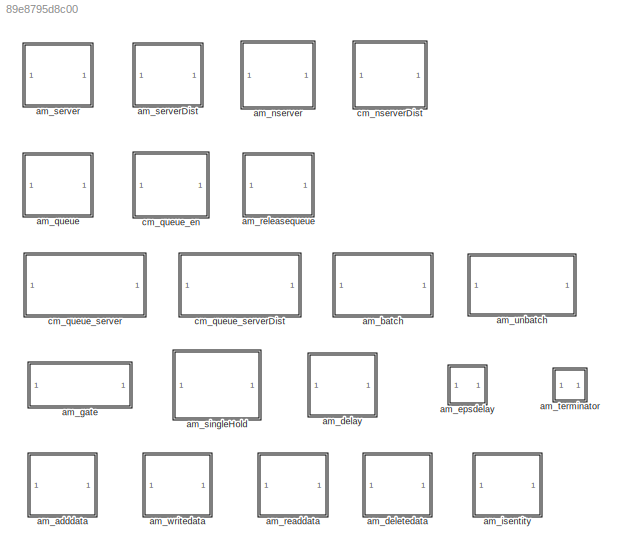
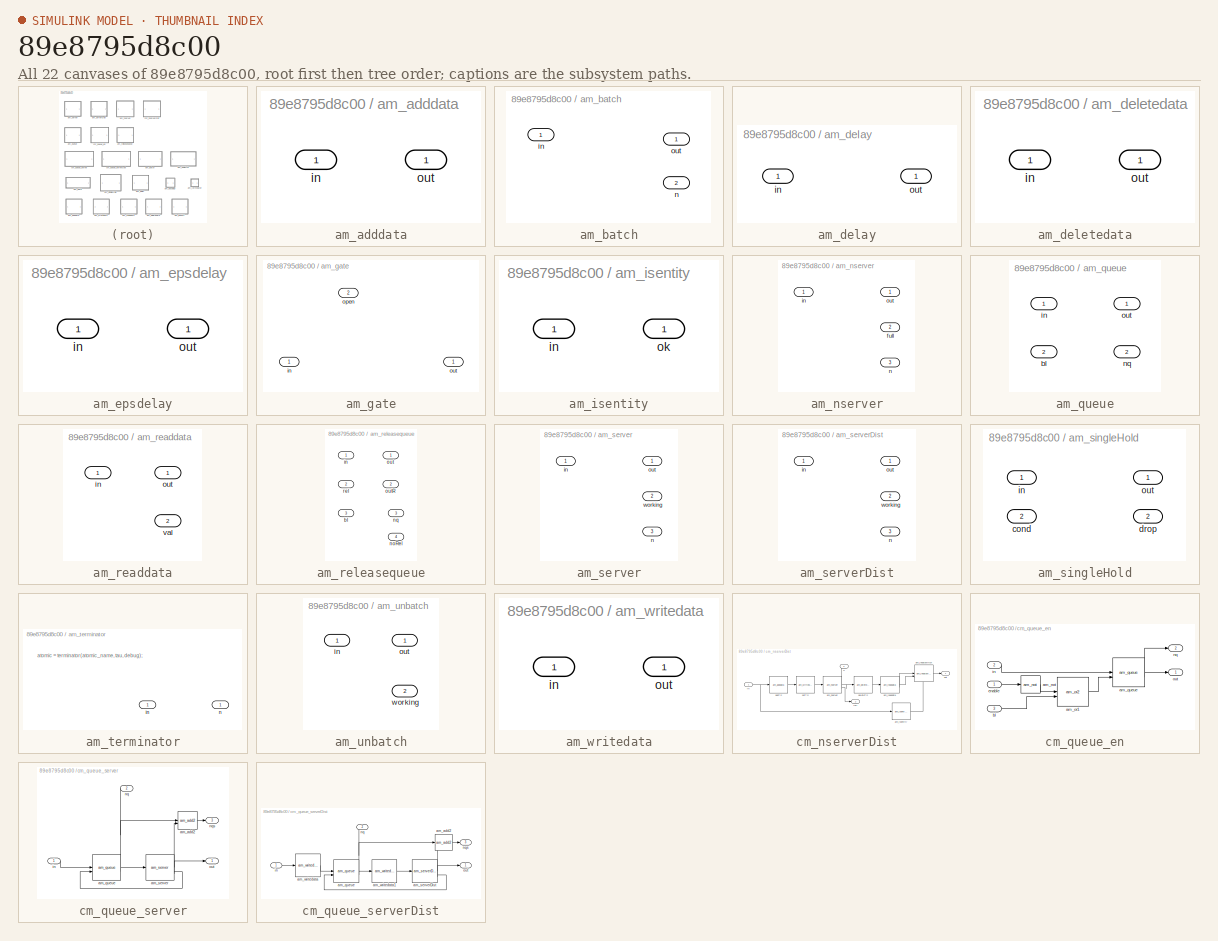
[diagram: thumbnail index - all 22 canvases of the model, root first then tree order]
MODEL slx_89e8795d8c00
KIND library
CONFIG AbsTol = auto
CONFIG EnableMultiTasking = off
CONFIG FixedStep = auto
CONFIG MaxStep = auto
CONFIG MinStep = auto
CONFIG RelTol = 1e-3
CONFIG SampleTimeConstraint = Unconstrained
CONFIG SolverName = VariableStepAuto
CONFIG StartTime = 0.0
CONFIG StopTime = 10.0
BLOCK [SubSystem] am_adddata
  ShowPortLabels = none
  TreatAsAtomicUnit = on
BLOCK [Inport] am_adddata/in
BLOCK [Outport] am_adddata/out
BLOCK [SubSystem] am_batch
  PortSchema = {"entries":[{"content":{"sides":[{"content":{"connectorIds":["In1"]},"type":"ConnectorPlacement.EquallySpacedRectSide","uuid":"8e15954b-329c-42af-8049-37e3c5654def"},{"content":{"connectorIds":["Out1"],"side":"RIGHT"},"type":"ConnectorPlacement.EquallySpacedRectSide","uuid":"63417118-70ef-43c0-aba5-016625c71a51"},{"content":{"connectorIds":["Out2"],"side":"TOP"},"type":"ConnectorPlacement.EquallyS...<+246ch>
  ShowPortLabels = none
  TreatAsAtomicUnit = on
BLOCK [Inport] am_batch/in
BLOCK [Outport] am_batch/n
  Port = 2
BLOCK [Outport] am_batch/out
BLOCK [SubSystem] am_delay
  ShowPortLabels = none
  TreatAsAtomicUnit = on
BLOCK [Inport] am_delay/in
BLOCK [Outport] am_delay/out
BLOCK [SubSystem] am_deletedata
  ShowPortLabels = none
  TreatAsAtomicUnit = on
BLOCK [Inport] am_deletedata/in
BLOCK [Outport] am_deletedata/out
BLOCK [SubSystem] am_epsdelay
  ShowPortLabels = none
  TreatAsAtomicUnit = on
BLOCK [Inport] am_epsdelay/in
BLOCK [Outport] am_epsdelay/out
BLOCK [SubSystem] am_gate
  PortSchema = {"entries":[{"content":{"sides":[{"content":{"connectorIds":["In1"]},"type":"ConnectorPlacement.EquallySpacedRectSide","uuid":"9e91849d-6784-4c2c-85c5-1ae2d6674bd6"},{"content":{"connectorIds":["Out1"],"side":"RIGHT"},"type":"ConnectorPlacement.EquallySpacedRectSide","uuid":"66074a09-403a-4c81-afe9-07f004dde84b"},{"content":{"connectorIds":["In2"],"side":"TOP"},"type":"ConnectorPlacement.EquallySp...<+245ch>
BLOCK [Inport] am_gate/in
BLOCK [Inport] am_gate/open
  Port = 2
BLOCK [Outport] am_gate/out
BLOCK [SubSystem] am_isentity
  ShowPortLabels = none
  TreatAsAtomicUnit = on
BLOCK [Inport] am_isentity/in
BLOCK [Outport] am_isentity/ok
BLOCK [SubSystem] am_nserver
  PortSchema = {"entries":[{"content":{"sides":[{"content":{"connectorIds":["In1"]},"type":"ConnectorPlacement.EquallySpacedRectSide","uuid":"5b183f90-fa7c-445f-8fcc-24f596b19ad3"},{"content":{"connectorIds":["Out1","Out2"],"side":"RIGHT"},"type":"ConnectorPlacement.EquallySpacedRectSide","uuid":"38178c13-d678-4577-a6b9-5280f6db2632"},{"content":{"connectorIds":["Out3"],"side":"TOP"},"type":"ConnectorPlacement.E...<+253ch>  <repeated x3 — deduplicated; at blocks: am_nserver, am_server, am_serverDist>
  ShowPortLabels = none
  TreatAsAtomicUnit = on
BLOCK [Outport] am_nserver/full
  Port = 2
BLOCK [Inport] am_nserver/in
BLOCK [Outport] am_nserver/n
  Port = 3
BLOCK [Outport] am_nserver/out
BLOCK [SubSystem] am_queue
  PortSchema = {"entries":[{"content":{"sides":[{"content":{"connectorIds":["In1","In2"]},"type":"ConnectorPlacement.EquallySpacedRectSide","uuid":"a540ed89-9b5d-441d-ada7-41a21a0b2235"},{"content":{"connectorIds":["Out1"],"side":"RIGHT"},"type":"ConnectorPlacement.EquallySpacedRectSide","uuid":"9c4633e5-6641-4191-bf3a-c71013e8ac94"},{"content":{"connectorIds":["Out2"],"side":"TOP"},"type":"ConnectorPlacement.Eq...<+252ch>
  ShowPortLabels = none
  TreatAsAtomicUnit = on
BLOCK [Inport] am_queue/bl
  Port = 2
BLOCK [Inport] am_queue/in
BLOCK [Outport] am_queue/nq
  Port = 2
BLOCK [Outport] am_queue/out
BLOCK [SubSystem] am_readdata
  PortSchema = {"entries":[{"content":{"sides":[{"content":{"connectorIds":["In1"]},"type":"ConnectorPlacement.EquallySpacedRectSide","uuid":"af4f6e7f-4af3-4de3-ab26-fba0b0c6ecc4"},{"content":{"connectorIds":["Out1"],"side":"RIGHT"},"type":"ConnectorPlacement.EquallySpacedRectSide","uuid":"ccdbf49e-e606-4b9c-9d6c-043b910468ef"},{"content":{"connectorIds":["Out2"],"side":"TOP"},"type":"ConnectorPlacement.EquallyS...<+372ch>
  ShowPortLabels = none
  TreatAsAtomicUnit = on
BLOCK [Inport] am_readdata/in
BLOCK [Outport] am_readdata/out
BLOCK [Outport] am_readdata/val
  Port = 2
BLOCK [SubSystem] am_releasequeue
  PortSchema = {"entries":[{"content":{"sides":[{"content":{"connectorIds":["In1","In2","In3"]},"type":"ConnectorPlacement.EquallySpacedRectSide","uuid":"13ed37bb-b7d7-4a3e-85e9-ca5352af307b"},{"content":{"connectorIds":["Out1","Out2"],"side":"RIGHT"},"type":"ConnectorPlacement.EquallySpacedRectSide","uuid":"9ca67023-fccb-4996-bf1d-9867d6e863f3"},{"content":{"connectorIds":["Out3","Out4"],"side":"TOP"},"type":"C...<+272ch>
  ShowPortLabels = none
  TreatAsAtomicUnit = on
BLOCK [Inport] am_releasequeue/bl
  Port = 3
BLOCK [Inport] am_releasequeue/in
BLOCK [Outport] am_releasequeue/noRel
  NameLocation = top
  Port = 4
BLOCK [Outport] am_releasequeue/nq
  NameLocation = top
  Port = 3
BLOCK [Outport] am_releasequeue/out
BLOCK [Outport] am_releasequeue/outR
  Port = 2
BLOCK [Inport] am_releasequeue/rel
  Port = 2
BLOCK [SubSystem] am_server
  ShowPortLabels = none
  TreatAsAtomicUnit = on
BLOCK [Inport] am_server/in
BLOCK [Outport] am_server/n
  Port = 3
BLOCK [Outport] am_server/out
BLOCK [Outport] am_server/working
  Port = 2
BLOCK [SubSystem] am_serverDist
  ShowPortLabels = none
  TreatAsAtomicUnit = on
BLOCK [Inport] am_serverDist/in
BLOCK [Outport] am_serverDist/n
  Port = 3
BLOCK [Outport] am_serverDist/out
BLOCK [Outport] am_serverDist/working
  Port = 2
BLOCK [SubSystem] am_singleHold
  PortSchema = {"entries":[{"content":{"sides":[{"content":{"connectorIds":["In1"]},"type":"ConnectorPlacement.EquallySpacedRectSide","uuid":"122b4754-80d5-4031-a4cc-3ccd1c55c1c4"},{"content":{"connectorIds":["Out1"],"side":"RIGHT"},"type":"ConnectorPlacement.EquallySpacedRectSide","uuid":"5b0c510c-77ed-4b63-9f7d-c7e10801e9ff"},{"content":{"connectorIds":["In2"],"side":"TOP"},"type":"ConnectorPlacement.EquallySp...<+395ch>
  ShowPortLabels = none
  TreatAsAtomicUnit = on
BLOCK [Inport] am_singleHold/cond
  Port = 2
BLOCK [Outport] am_singleHold/drop
  Port = 2
BLOCK [Inport] am_singleHold/in
BLOCK [Outport] am_singleHold/out
BLOCK [SubSystem] am_terminator
  PortSchema = {"entries":[{"content":{"sides":[{"content":{"connectorIds":["In1"]},"type":"ConnectorPlacement.EquallySpacedRectSide","uuid":"49bb8e9f-90f2-4275-9611-e25e817b13b5"},{"content":{"side":"RIGHT"},"type":"ConnectorPlacement.EquallySpacedRectSide","uuid":"c18d105c-f57d-4a33-ac03-be83593b975c"},{"content":{"connectorIds":["Out1"],"side":"TOP"},"type":"ConnectorPlacement.EquallySpacedRectSide","uuid":"7...<+222ch>
  ShowPortLabels = none
BLOCK [Inport] am_terminator/in
BLOCK [Outport] am_terminator/n
BLOCK [SubSystem] am_unbatch
  PortSchema = {"entries":[{"content":{"sides":[{"content":{"connectorIds":["In1"]},"type":"ConnectorPlacement.EquallySpacedRectSide","uuid":"699a685a-82e4-4da2-bfa9-e0858b917d6d"},{"content":{"connectorIds":["Out1"],"side":"RIGHT"},"type":"ConnectorPlacement.EquallySpacedRectSide","uuid":"5f2f7699-5233-4ca6-a241-8c900520435d"},{"content":{"connectorIds":["Out2"],"side":"TOP"},"type":"ConnectorPlacement.EquallyS...<+246ch>
  ShowPortLabels = none
  TreatAsAtomicUnit = on
BLOCK [Inport] am_unbatch/in
BLOCK [Outport] am_unbatch/out
BLOCK [Outport] am_unbatch/working
  Port = 2
BLOCK [SubSystem] am_writedata
  ShowPortLabels = none
  TreatAsAtomicUnit = on
BLOCK [Inport] am_writedata/in
BLOCK [Outport] am_writedata/out
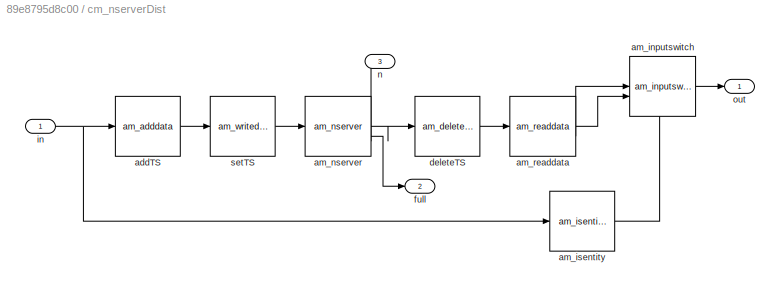
BLOCK [SubSystem] cm_nserverDist
  PortSchema = {"entries":[{"content":{"sides":[{"content":{"connectorIds":["In1"]},"type":"ConnectorPlacement.EquallySpacedRectSide","uuid":"eca6e159-4e27-4729-aa7d-b464d6fdfe1f"},{"content":{"connectorIds":["Out1","Out2"],"side":"RIGHT"},"type":"ConnectorPlacement.EquallySpacedRectSide","uuid":"154720cd-ea47-4284-be2d-6f7191e664f3"},{"content":{"connectorIds":["Out3"],"side":"TOP"},"type":"ConnectorPlacement.E...<+253ch>
  ShowPortLabels = none
BLOCK [Reference] cm_nserverDist/addTS  REF=$bdroot/am_adddata
  SourceBlock = $bdroot/am_adddata
  SourceType = Adddata
BLOCK [Reference] cm_nserverDist/am_inputswitch  REF=NSA_DEVS_ROUTING/am_inputswitch
  SourceBlock = NSA_DEVS_ROUTING/am_inputswitch
  SourceProductName = Routing
  SourceType = Inputswitch
BLOCK [Reference] cm_nserverDist/am_isentity  REF=$bdroot/am_isentity
  SourceBlock = $bdroot/am_isentity
  SourceType = Isentity
BLOCK [Reference] cm_nserverDist/am_nserver  REF=$bdroot/am_nserver
  SourceBlock = $bdroot/am_nserver
  SourceType = Server
BLOCK [Reference] cm_nserverDist/am_readdata  REF=$bdroot/am_readdata
  SourceBlock = $bdroot/am_readdata
  SourceType = Readdata
BLOCK [Reference] cm_nserverDist/deleteTS  REF=$bdroot/am_deletedata
  SourceBlock = $bdroot/am_deletedata
  SourceType = Deletedata
BLOCK [Outport] cm_nserverDist/full
  Port = 2
BLOCK [Inport] cm_nserverDist/in
BLOCK [Outport] cm_nserverDist/n
  Port = 3
BLOCK [Outport] cm_nserverDist/out
  NameLocation = right
BLOCK [Reference] cm_nserverDist/setTS  REF=$bdroot/am_writedata
  SourceBlock = $bdroot/am_writedata
  SourceType = Writedata
BLOCK [SubSystem] cm_queue_en
  PortSchema = {"entries":[{"content":{"sides":[{"content":{"connectorIds":["In1","In2","In3"]},"type":"ConnectorPlacement.EquallySpacedRectSide","uuid":"049aff47-2d52-45a1-8cfe-c5a626c266e1"},{"content":{"connectorIds":["Out1"],"side":"RIGHT"},"type":"ConnectorPlacement.EquallySpacedRectSide","uuid":"d161dc95-73c9-457a-a499-61ffb49d079d"},{"content":{"connectorIds":["Out2"],"side":"TOP"},"type":"ConnectorPlacem...<+258ch>
  ShowPortLabels = none
BLOCK [Reference] cm_queue_en/am_not  REF=NSA_DEVS_MATH_OPERATIONS/am_not
  SourceBlock = NSA_DEVS_MATH_OPERATIONS/am_not
  SourceProductName = Math Operations
  SourceType = Notgate
BLOCK [Reference] cm_queue_en/am_or1  REF=NSA_DEVS_MATH_OPERATIONS/am_or2
  SourceBlock = NSA_DEVS_MATH_OPERATIONS/am_or2
  SourceProductName = Math Operations
  SourceType = Or2
BLOCK [Reference] cm_queue_en/am_queue  REF=$bdroot/am_queue
  SourceBlock = $bdroot/am_queue
  SourceType = Queue
BLOCK [Inport] cm_queue_en/bl
  Port = 3
BLOCK [Inport] cm_queue_en/enable
BLOCK [Inport] cm_queue_en/in
  Port = 2
BLOCK [Outport] cm_queue_en/nq
  Port = 2
BLOCK [Outport] cm_queue_en/out
BLOCK [SubSystem] cm_queue_server
  PortSchema = {"entries":[{"content":{"sides":[{"content":{"connectorIds":["In1"]},"type":"ConnectorPlacement.EquallySpacedRectSide","uuid":"07fa0e51-8843-4ac9-8e94-884ae9a89d36"},{"content":{"connectorIds":["Out1"],"side":"RIGHT"},"type":"ConnectorPlacement.EquallySpacedRectSide","uuid":"0131ce69-7449-4362-9cfd-88c0df269334"},{"content":{"connectorIds":["Out2","Out3"],"side":"TOP"},"type":"ConnectorPlacement.E...<+253ch>
  ShowPortLabels = none
BLOCK [Reference] cm_queue_server/am_add2  REF=NSA_DEVS_MATH_OPERATIONS/am_add2
  SourceBlock = NSA_DEVS_MATH_OPERATIONS/am_add2
  SourceProductName = Math Operations
  SourceType = Add2
BLOCK [Reference] cm_queue_server/am_queue  REF=$bdroot/am_queue
  SourceBlock = $bdroot/am_queue
  SourceType = Queue
BLOCK [Reference] cm_queue_server/am_server  REF=$bdroot/am_server
  SourceBlock = $bdroot/am_server
  SourceType = Server
BLOCK [Inport] cm_queue_server/in
BLOCK [Outport] cm_queue_server/nq
  Port = 2
BLOCK [Outport] cm_queue_server/nqs
  Port = 3
BLOCK [Outport] cm_queue_server/out
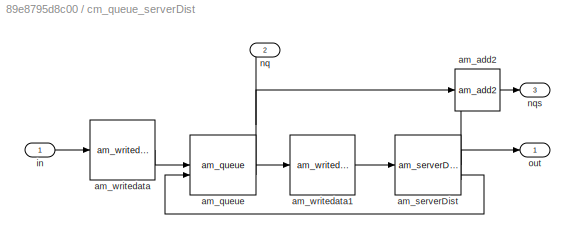
BLOCK [SubSystem] cm_queue_serverDist
  PortSchema = {"entries":[{"content":{"sides":[{"content":{"connectorIds":["In1"]},"type":"ConnectorPlacement.EquallySpacedRectSide","uuid":"07fa0e51-8843-4ac9-8e94-884ae9a89d36"},{"content":{"connectorIds":["Out1"],"side":"RIGHT"},"type":"ConnectorPlacement.EquallySpacedRectSide","uuid":"0131ce69-7449-4362-9cfd-88c0df269334"},{"content":{"connectorIds":["Out2","Out3"],"side":"TOP"},"type":"ConnectorPlacement.E...<+253ch>
  ShowPortLabels = none
BLOCK [Reference] cm_queue_serverDist/am_add2  REF=NSA_DEVS_MATH_OPERATIONS/am_add2
  SourceBlock = NSA_DEVS_MATH_OPERATIONS/am_add2
  SourceProductName = Math Operations
  SourceType = Add2
BLOCK [Reference] cm_queue_serverDist/am_queue  REF=$bdroot/am_queue
  SourceBlock = $bdroot/am_queue
  SourceType = Queue
BLOCK [Reference] cm_queue_serverDist/am_serverDist  REF=$bdroot/am_serverDist
  SourceBlock = $bdroot/am_serverDist
  SourceType = ServerDist
BLOCK [Reference] cm_queue_serverDist/am_writedata  REF=$bdroot/am_writedata
  SourceBlock = $bdroot/am_writedata
  SourceType = Writedata
BLOCK [Reference] cm_queue_serverDist/am_writedata1  REF=$bdroot/am_writedata
  SourceBlock = $bdroot/am_writedata
  SourceType = Writedata
BLOCK [Inport] cm_queue_serverDist/in
BLOCK [Outport] cm_queue_serverDist/nq
  Port = 2
BLOCK [Outport] cm_queue_serverDist/nqs
  Port = 3
BLOCK [Outport] cm_queue_serverDist/out
ANNOTATION am_terminator: atomic = terminator(atomic_name, tau, debug);
LINE cm_nserverDist/addTS:1 -> cm_nserverDist/setTS:1
LINE cm_nserverDist/am_inputswitch:1 -> cm_nserverDist/out:1
LINE cm_nserverDist/am_isentity:1 -> cm_nserverDist/am_inputswitch:3
LINE cm_nserverDist/am_nserver:1 -> cm_nserverDist/deleteTS:1
LINE cm_nserverDist/am_nserver:2 -> cm_nserverDist/full:1
LINE cm_nserverDist/am_nserver:3 -> cm_nserverDist/n:1
LINE cm_nserverDist/am_readdata:1 -> cm_nserverDist/am_inputswitch:2
LINE cm_nserverDist/am_readdata:2 -> cm_nserverDist/am_inputswitch:1
LINE cm_nserverDist/deleteTS:1 -> cm_nserverDist/am_readdata:1
NET cm_nserverDist/in:1 -> cm_nserverDist/addTS:1, cm_nserverDist/am_isentity:1
LINE cm_nserverDist/setTS:1 -> cm_nserverDist/am_nserver:1
LINE cm_queue_en/am_not:1 -> cm_queue_en/am_or1:1
LINE cm_queue_en/am_or1:1 -> cm_queue_en/am_queue:2
LINE cm_queue_en/am_queue:1 -> cm_queue_en/out:1
LINE cm_queue_en/am_queue:2 -> cm_queue_en/nq:1
LINE cm_queue_en/bl:1 -> cm_queue_en/am_or1:2
LINE cm_queue_en/enable:1 -> cm_queue_en/am_not:1
LINE cm_queue_en/in:1 -> cm_queue_en/am_queue:1
LINE cm_queue_server/am_add2:1 -> cm_queue_server/nqs:1
LINE cm_queue_server/am_queue:1 -> cm_queue_server/am_server:1
NET cm_queue_server/am_queue:2 -> cm_queue_server/am_add2:1, cm_queue_server/nq:1
LINE cm_queue_server/am_server:1 -> cm_queue_server/out:1
LINE cm_queue_server/am_server:2 -> cm_queue_server/am_queue:2
LINE cm_queue_server/am_server:3 -> cm_queue_server/am_add2:2
LINE cm_queue_server/in:1 -> cm_queue_server/am_queue:1
LINE cm_queue_serverDist/am_add2:1 -> cm_queue_serverDist/nqs:1
LINE cm_queue_serverDist/am_queue:1 -> cm_queue_serverDist/am_writedata1:1
NET cm_queue_serverDist/am_queue:2 -> cm_queue_serverDist/am_add2:1, cm_queue_serverDist/nq:1
LINE cm_queue_serverDist/am_serverDist:1 -> cm_queue_serverDist/out:1
LINE cm_queue_serverDist/am_serverDist:2 -> cm_queue_serverDist/am_queue:2
LINE cm_queue_serverDist/am_serverDist:3 -> cm_queue_serverDist/am_add2:2
LINE cm_queue_serverDist/am_writedata1:1 -> cm_queue_serverDist/am_serverDist:1
LINE cm_queue_serverDist/am_writedata:1 -> cm_queue_serverDist/am_queue:1
LINE cm_queue_serverDist/in:1 -> cm_queue_serverDist/am_writedata:1
note: NET lines group one-source signal fan-out (src -> all destinations, sorted); 1:1 wires keep LINE
